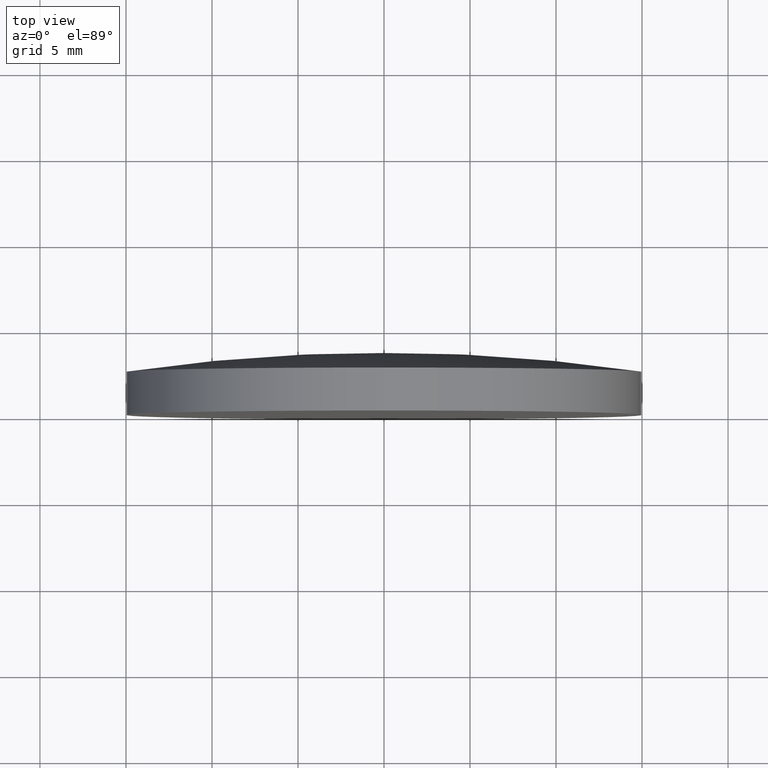
[diagram: clean part render]
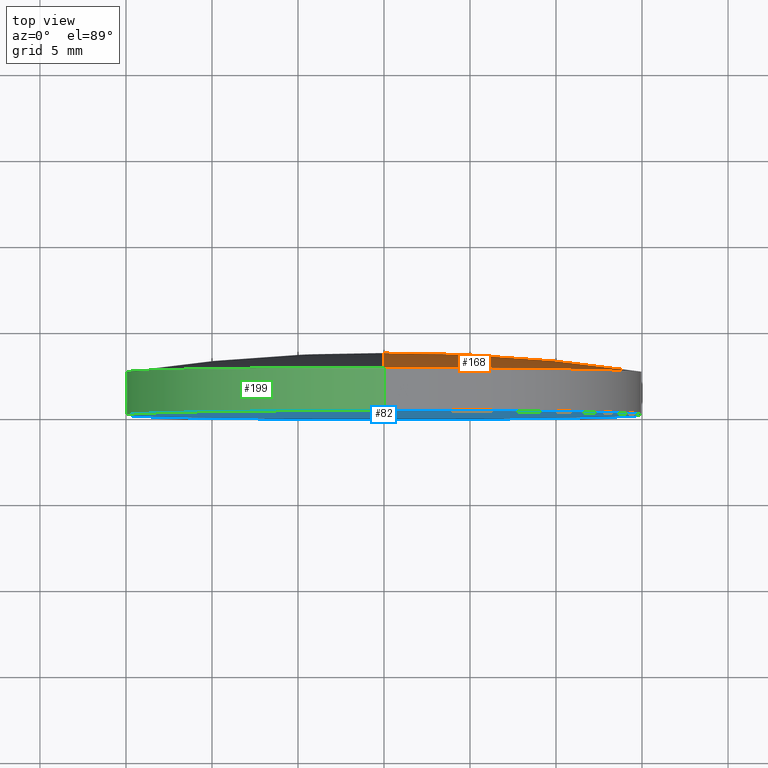
[diagram: same view with three faces highlighted in distinct colors, each labeled with its STEP entity id]
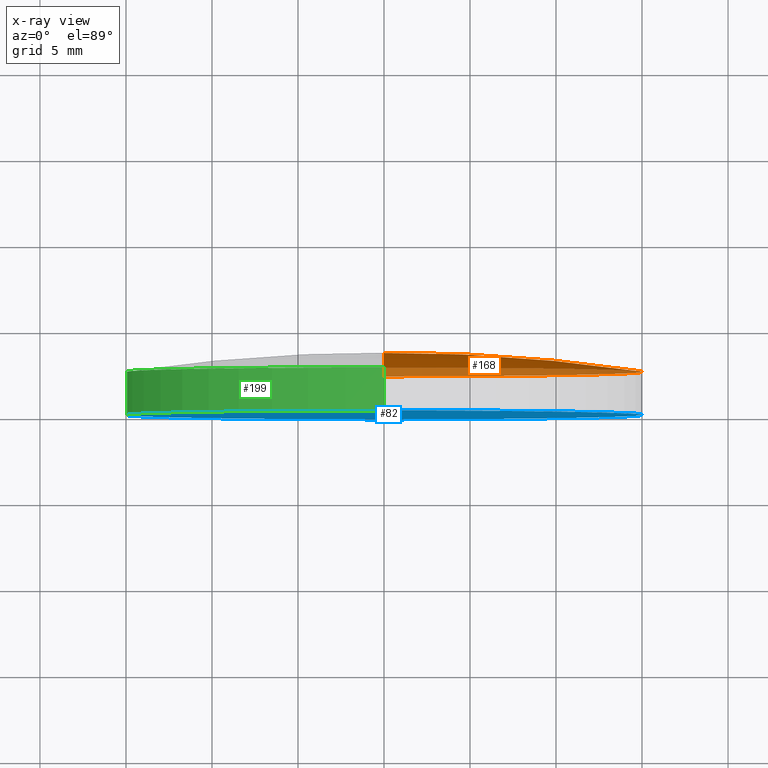
[diagram: x-ray of the same camera — body ghosted, the three highlighted faces saturated]
A machine part, top view with three faces highlighted in distinct colors.
The next image is the same camera in x-ray (body ghosted, the three faces saturated) — at least one of them is partly hidden behind the body in this view.
Their STEP definitions:

[orange] entity #168 — the highlighted toroidal blend (fillet) surface has major radius 0.0335 mm and minor (blend) radius 103.28 mm.
#1 = EDGE_CURVE ( 'NONE', #61, #75, #130, .T. ) ;
#14 = AXIS2_PLACEMENT_3D ( 'NONE', #66, #144, #158 ) ;
#17 = ORIENTED_EDGE ( 'NONE', *, *, #30, .T. ) ;
#30 = EDGE_CURVE ( 'NONE', #94, #61, #67, .T. ) ;
#31 = DIRECTION ( 'NONE',  ( -0.000000000000000000, 1.000000000000000000, -0.000000000000000000 ) ) ;
#51 = CARTESIAN_POINT ( 'NONE',  ( 1.836970198721033533E-15, 2.500000000000000444, -15.00000000000002842 ) ) ;
#60 = ORIENTED_EDGE ( 'NONE', *, *, #151, .F. ) ;
#61 = VERTEX_POINT ( 'NONE', #51 ) ;
#66 = CARTESIAN_POINT ( 'NONE',  ( 0.000000000000000000, -99.67999455626598149, 0.000000000000000000 ) ) ;
#67 = CIRCLE ( 'NONE', #155, 15.00000000000000000 ) ;
#69 = CARTESIAN_POINT ( 'NONE',  ( -4.106600044365310216E-18, -99.67999455626598149, 0.03353293412618630481 ) ) ;
#75 = VERTEX_POINT ( 'NONE', #96 ) ;
#76 = AXIS2_PLACEMENT_3D ( 'NONE', #69, #194, #83 ) ;
#83 = DIRECTION ( 'NONE',  ( 1.224646799147353207E-16, 0.000000000000000000, -1.000000000000000000 ) ) ;
#91 = ORIENTED_EDGE ( 'NONE', *, *, #1, .T. ) ;
#92 = EDGE_LOOP ( 'NONE', ( #17, #91, #60 ) ) ;
#94 = VERTEX_POINT ( 'NONE', #127 ) ;
#95 = TOROIDAL_SURFACE ( 'NONE', #14, -0.03353293412618630481, 103.2800000000000296 ) ;
#96 = CARTESIAN_POINT ( 'NONE',  ( 0.000000000000000000, 3.600000000000000533, 0.000000000000000000 ) ) ;
#106 = AXIS2_PLACEMENT_3D ( 'NONE', #146, #176, #138 ) ;
#115 = DIRECTION ( 'NONE',  ( 0.000000000000000000, 0.000000000000000000, 1.000000000000000000 ) ) ;
#127 = CARTESIAN_POINT ( 'NONE',  ( 0.000000000000000000, 2.500000000000000444, 15.00000000000002842 ) ) ;
#130 = CIRCLE ( 'NONE', #76, 103.2800000000000296 ) ;
#138 = DIRECTION ( 'NONE',  ( 0.000000000000000000, 0.000000000000000000, 1.000000000000000000 ) ) ;
#144 = DIRECTION ( 'NONE',  ( -0.000000000000000000, 1.000000000000000000, -0.000000000000000000 ) ) ;
#146 = CARTESIAN_POINT ( 'NONE',  ( 0.000000000000000000, -99.67999455626598149, -0.03353293412618630481 ) ) ;
#151 = EDGE_CURVE ( 'NONE', #94, #75, #196, .T. ) ;
#155 = AXIS2_PLACEMENT_3D ( 'NONE', #170, #31, #115 ) ;
#158 = DIRECTION ( 'NONE',  ( 0.000000000000000000, 0.000000000000000000, 1.000000000000000000 ) ) ;
#168 = ADVANCED_FACE ( 'NONE', ( #171 ), #95, .T. ) ;
#170 = CARTESIAN_POINT ( 'NONE',  ( 0.000000000000000000, 2.499999999999998224, 0.000000000000000000 ) ) ;
#171 = FACE_OUTER_BOUND ( 'NONE', #92, .T. ) ;
#176 = DIRECTION ( 'NONE',  ( -1.000000000000000000, 0.000000000000000000, 0.000000000000000000 ) ) ;
#194 = DIRECTION ( 'NONE',  ( 1.000000000000000000, 0.000000000000000000, 1.224646799147353207E-16 ) ) ;
#196 = CIRCLE ( 'NONE', #106, 103.2800000000000296 ) ;

[blue] entity #82 — the highlighted planar face has unit normal (0, -1, 0).
#3 = AXIS2_PLACEMENT_3D ( 'NONE', #160, #54, #192 ) ;
#33 = FACE_OUTER_BOUND ( 'NONE', #169, .T. ) ;
#44 = EDGE_CURVE ( 'NONE', #137, #126, #89, .T. ) ;
#54 = DIRECTION ( 'NONE',  ( -0.000000000000000000, 1.000000000000000000, -0.000000000000000000 ) ) ;
#56 = DIRECTION ( 'NONE',  ( 0.000000000000000000, -0.000000000000000000, -1.000000000000000000 ) ) ;
#62 = DIRECTION ( 'NONE',  ( -0.000000000000000000, 1.000000000000000000, -0.000000000000000000 ) ) ;
#63 = CARTESIAN_POINT ( 'NONE',  ( 0.000000000000000000, -9.184850993605147944E-16, 0.000000000000000000 ) ) ;
#81 = CARTESIAN_POINT ( 'NONE',  ( 0.000000000000000000, -1.734723475976807094E-15, 0.000000000000000000 ) ) ;
#82 = ADVANCED_FACE ( 'NONE', ( #33 ), #154, .T. ) ;
#85 = DIRECTION ( 'NONE',  ( 0.000000000000000000, 0.000000000000000000, 1.000000000000000000 ) ) ;
#89 = CIRCLE ( 'NONE', #183, 15.00000000000000000 ) ;
#97 = CARTESIAN_POINT ( 'NONE',  ( 1.836970198721029589E-15, -1.734723475976807094E-15, -15.00000000000000000 ) ) ;
#110 = ORIENTED_EDGE ( 'NONE', *, *, #44, .F. ) ;
#117 = CARTESIAN_POINT ( 'NONE',  ( 0.000000000000000000, -1.734723475976807094E-15, 15.00000000000000000 ) ) ;
#121 = AXIS2_PLACEMENT_3D ( 'NONE', #63, #173, #56 ) ;
#122 = EDGE_CURVE ( 'NONE', #126, #137, #148, .T. ) ;
#126 = VERTEX_POINT ( 'NONE', #117 ) ;
#137 = VERTEX_POINT ( 'NONE', #97 ) ;
#148 = CIRCLE ( 'NONE', #3, 15.00000000000000000 ) ;
#153 = ORIENTED_EDGE ( 'NONE', *, *, #122, .F. ) ;
#154 = PLANE ( 'NONE',  #121 ) ;
#160 = CARTESIAN_POINT ( 'NONE',  ( 0.000000000000000000, -1.734723475976807094E-15, 0.000000000000000000 ) ) ;
#169 = EDGE_LOOP ( 'NONE', ( #153, #110 ) ) ;
#173 = DIRECTION ( 'NONE',  ( 0.000000000000000000, -1.000000000000000000, 0.000000000000000000 ) ) ;
#183 = AXIS2_PLACEMENT_3D ( 'NONE', #81, #62, #85 ) ;
#192 = DIRECTION ( 'NONE',  ( 0.000000000000000000, 0.000000000000000000, 1.000000000000000000 ) ) ;

[green] entity #199 — the highlighted cylindrical surface (partial cylindrical patch) has radius 15 mm, axis along (-0, 1, -0).
#4 = ORIENTED_EDGE ( 'NONE', *, *, #70, .F. ) ;
#9 = VECTOR ( 'NONE', #142, 1000.000000000000000 ) ;
#35 = LINE ( 'NONE', #111, #185 ) ;
#44 = EDGE_CURVE ( 'NONE', #137, #126, #89, .T. ) ;
#46 = CIRCLE ( 'NONE', #133, 15.00000000000000000 ) ;
#49 = ORIENTED_EDGE ( 'NONE', *, *, #88, .T. ) ;
#51 = CARTESIAN_POINT ( 'NONE',  ( 1.836970198721033533E-15, 2.500000000000000444, -15.00000000000002842 ) ) ;
#61 = VERTEX_POINT ( 'NONE', #51 ) ;
#62 = DIRECTION ( 'NONE',  ( -0.000000000000000000, 1.000000000000000000, -0.000000000000000000 ) ) ;
#70 = EDGE_CURVE ( 'NONE', #137, #61, #188, .T. ) ;
#77 = CARTESIAN_POINT ( 'NONE',  ( 0.000000000000000000, 2.499999999999998224, 0.000000000000000000 ) ) ;
#79 = DIRECTION ( 'NONE',  ( 0.000000000000000000, 0.000000000000000000, 1.000000000000000000 ) ) ;
#81 = CARTESIAN_POINT ( 'NONE',  ( 0.000000000000000000, -1.734723475976807094E-15, 0.000000000000000000 ) ) ;
#85 = DIRECTION ( 'NONE',  ( 0.000000000000000000, 0.000000000000000000, 1.000000000000000000 ) ) ;
#88 = EDGE_CURVE ( 'NONE', #126, #94, #35, .T. ) ;
#89 = CIRCLE ( 'NONE', #183, 15.00000000000000000 ) ;
#94 = VERTEX_POINT ( 'NONE', #127 ) ;
#97 = CARTESIAN_POINT ( 'NONE',  ( 1.836970198721029589E-15, -1.734723475976807094E-15, -15.00000000000000000 ) ) ;
#100 = CARTESIAN_POINT ( 'NONE',  ( 1.836970198721029589E-15, 3.600000000000000533, -15.00000000000000000 ) ) ;
#102 = DIRECTION ( 'NONE',  ( -0.000000000000000000, 1.000000000000000000, -0.000000000000000000 ) ) ;
#111 = CARTESIAN_POINT ( 'NONE',  ( 0.000000000000000000, 3.600000000000000533, 15.00000000000000000 ) ) ;
#113 = CARTESIAN_POINT ( 'NONE',  ( 0.000000000000000000, 3.600000000000000533, 0.000000000000000000 ) ) ;
#117 = CARTESIAN_POINT ( 'NONE',  ( 0.000000000000000000, -1.734723475976807094E-15, 15.00000000000000000 ) ) ;
#126 = VERTEX_POINT ( 'NONE', #117 ) ;
#127 = CARTESIAN_POINT ( 'NONE',  ( 0.000000000000000000, 2.500000000000000444, 15.00000000000002842 ) ) ;
#129 = DIRECTION ( 'NONE',  ( -0.000000000000000000, 1.000000000000000000, -0.000000000000000000 ) ) ;
#132 = FACE_OUTER_BOUND ( 'NONE', #189, .T. ) ;
#133 = AXIS2_PLACEMENT_3D ( 'NONE', #77, #179, #79 ) ;
#137 = VERTEX_POINT ( 'NONE', #97 ) ;
#139 = AXIS2_PLACEMENT_3D ( 'NONE', #113, #102, #164 ) ;
#140 = ORIENTED_EDGE ( 'NONE', *, *, #163, .F. ) ;
#142 = DIRECTION ( 'NONE',  ( -0.000000000000000000, 1.000000000000000000, -0.000000000000000000 ) ) ;
#163 = EDGE_CURVE ( 'NONE', #61, #94, #46, .T. ) ;
#164 = DIRECTION ( 'NONE',  ( 0.000000000000000000, 0.000000000000000000, 1.000000000000000000 ) ) ;
#179 = DIRECTION ( 'NONE',  ( -0.000000000000000000, 1.000000000000000000, -0.000000000000000000 ) ) ;
#183 = AXIS2_PLACEMENT_3D ( 'NONE', #81, #62, #85 ) ;
#185 = VECTOR ( 'NONE', #129, 1000.000000000000000 ) ;
#187 = ORIENTED_EDGE ( 'NONE', *, *, #44, .T. ) ;
#188 = LINE ( 'NONE', #100, #9 ) ;
#189 = EDGE_LOOP ( 'NONE', ( #4, #187, #49, #140 ) ) ;
#190 = CYLINDRICAL_SURFACE ( 'NONE', #139, 15.00000000000000000 ) ;
#199 = ADVANCED_FACE ( 'NONE', ( #132 ), #190, .T. ) ;